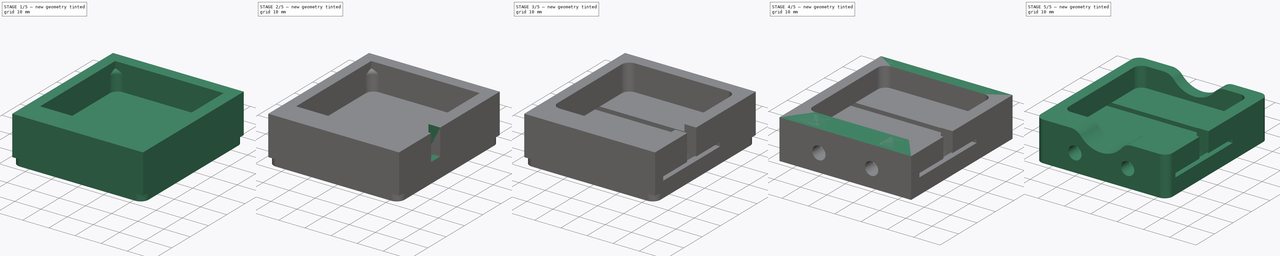
[diagram: build sequence overview — one tinted view per stage of 5, left to right]
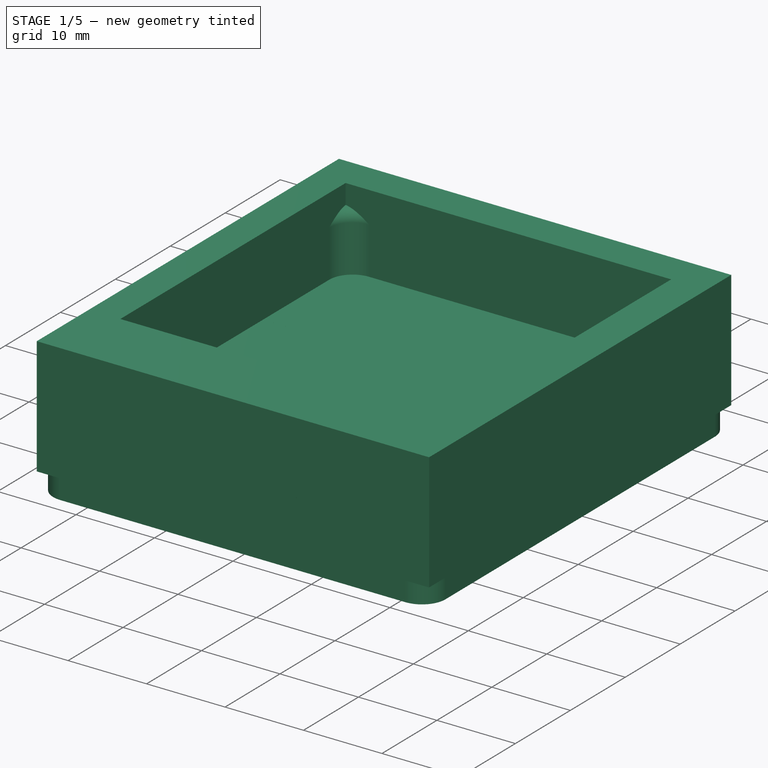
[diagram: stage 1 of 5 — iso view after this stage's code; geometry added in this stage tinted green]
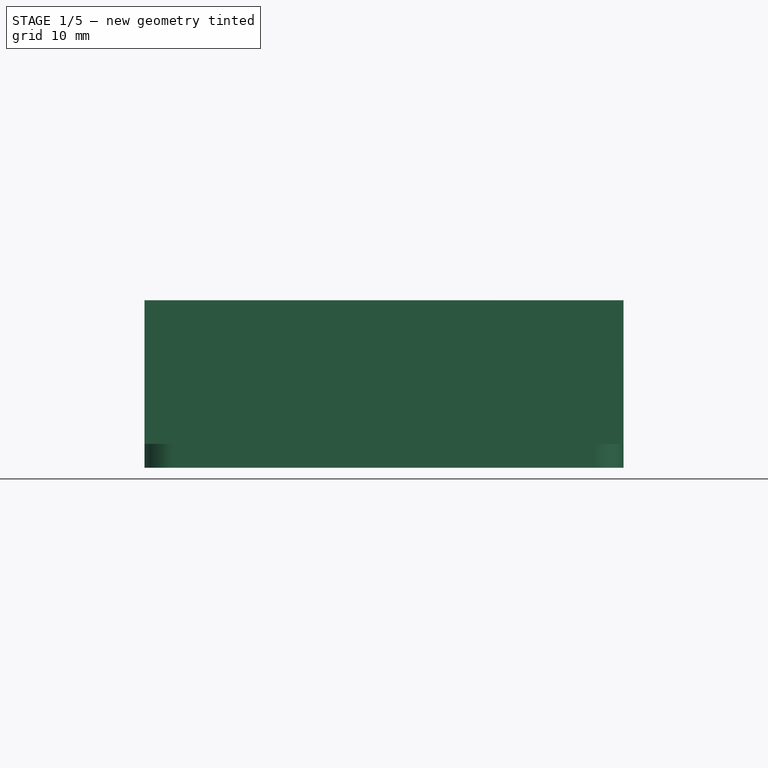
[diagram: stage 1 of 5 — front view after this stage's code; geometry added in this stage tinted green]
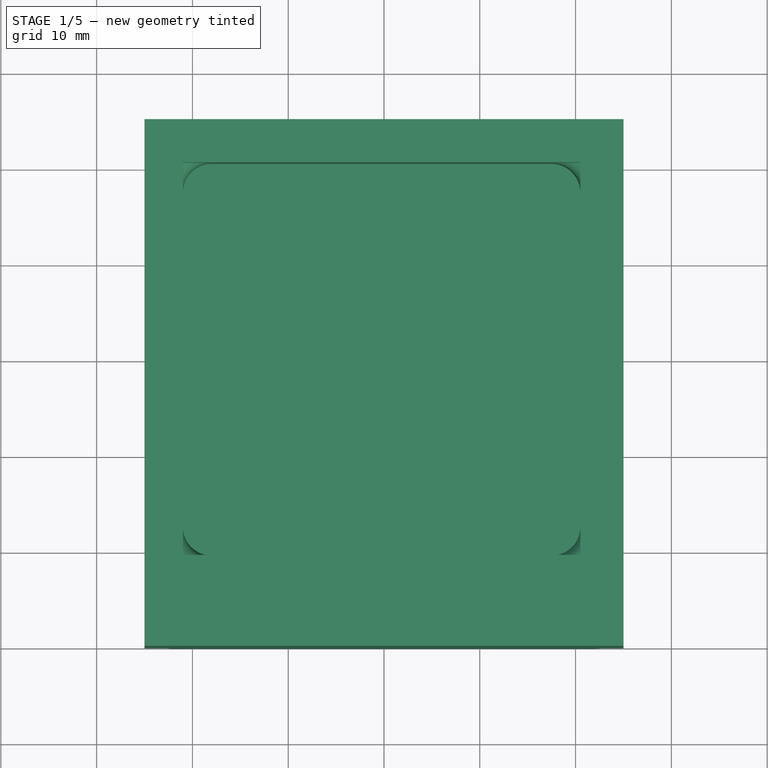
[diagram: stage 1 of 5 — top view after this stage's code; geometry added in this stage tinted green]
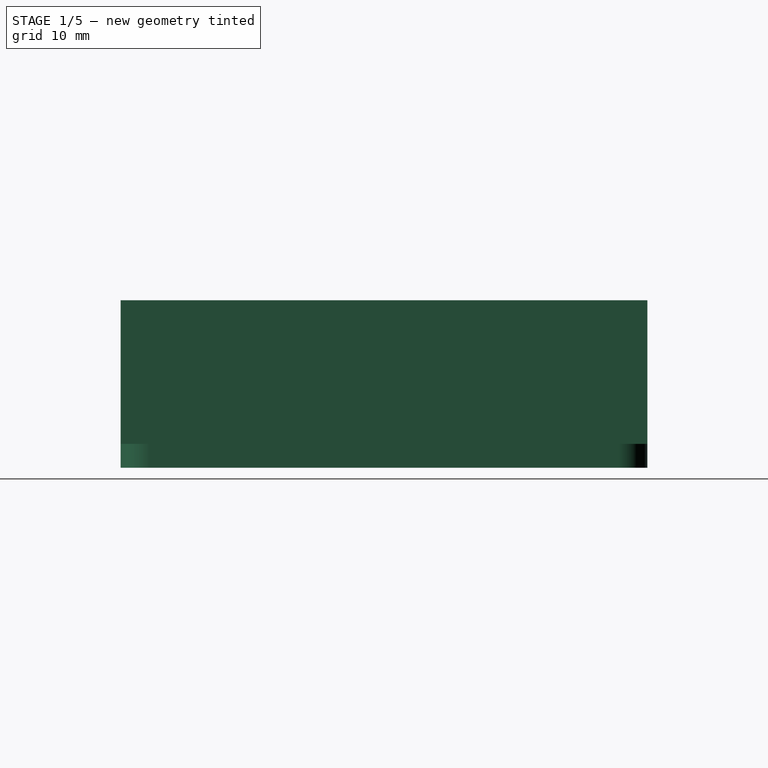
[diagram: stage 1 of 5 — right view after this stage's code; geometry added in this stage tinted green]
FCSTD DOCUMENT  (FreeCAD 0.17R7796 (Git))
Label: multi_length_fan_jig
License: CreativeCommons Attribution-ShareAlike
LicenseURL: http://creativecommons.org/licenses/by-sa/4.0/
objects: Sketcher::SketchObject×11, PartDesign::Pocket×7, PartDesign::Fillet×6, PartDesign::Pad×3, PartDesign::Chamfer×1, PartDesign::Body×1, Part::Feature×1
note: 40 computed .brp shape members not serialized (recipe doc carries the construction recipe); baked Part::Feature solids carry a one-line shape summary decoded from their .brp

FEATURE [Sketcher::SketchObject] Sketch
  MapMode = 5
  Support = -> [XY_Plane]
  sketch-geometry (4):
    g0: LineSegment StartX=-25 StartY=25 StartZ=0 EndX=25 EndY=25 EndZ=0
    g1: LineSegment StartX=25 StartY=25 StartZ=0 EndX=25 EndY=-30 EndZ=0
    g2: LineSegment StartX=25 StartY=-30 StartZ=0 EndX=-25 EndY=-30 EndZ=0
    g3: LineSegment StartX=-25 StartY=-30 StartZ=0 EndX=-25 EndY=25 EndZ=0
  constraints (12):
    c: Coincident(g0,g1)
    c: Coincident(g1,g2)
    c: Coincident(g2,g3)
    c: Coincident(g3,g0)
    c: Horizontal(g0)
    c: Horizontal(g2)
    c: Vertical(g1)
    c: Vertical(g3)
    c: DistanceX(g0,g0) = 50
    c: DistanceY(g3,g3) = 55
    c: DistanceX(g2,g-1) = 25
    c: DistanceY(g-1,g0) = 25
FEATURE [PartDesign::Pad] Pad
  Length = 15
  Length2 = 100
  Profile = -> Sketch
  Type = 0
FEATURE [Sketcher::SketchObject] Sketch001
  MapMode = 5
  Placement = pos=(0,0,15) rot=(0,0,1;0rad)
  Support = -> [Pad]
  sketch-geometry (4):
    g0: LineSegment StartX=-21 StartY=20.5 StartZ=0 EndX=20.5 EndY=20.5 EndZ=0
    g1: LineSegment StartX=20.5 StartY=20.5 StartZ=0 EndX=20.5 EndY=-20.5 EndZ=0
    g2: LineSegment StartX=20.5 StartY=-20.5 StartZ=0 EndX=-21 EndY=-20.5 EndZ=0
    g3: LineSegment StartX=-21 StartY=-20.5 StartZ=0 EndX=-21 EndY=20.5 EndZ=0
  constraints (12):
    c: Coincident(g0,g1)
    c: Coincident(g1,g2)
    c: Coincident(g2,g3)
    c: Coincident(g3,g0)
    c: Horizontal(g0)
    c: Horizontal(g2)
    c: Vertical(g1)
    c: Vertical(g3)
    c: DistanceX(g0,g0) = 41.5
    c: DistanceY(g3,g3) = 41
    c: DistanceY(g-1,g0) = 20.5
    c: DistanceX(g0,g-1) = 21
FEATURE [PartDesign::Pocket] Pocket
  BaseFeature = -> Pad
  Length = 10
  Profile = -> Sketch001
  Type = 0
FEATURE [PartDesign::Body] Body
  Model = -> [Sketch,Pad,Sketch001,Pocket,Sketch002,Pocket001,Sketch003,Sketch004,Pocket002,Chamfer,Sketch005,Pad001,Sketch006,Pocket003,Fillet,Fillet001,Fillet002,Sketch007,Pocket004,Sketch008,Pocket005,Sketch009,Pad002,Sketch010,Pocket006,Fillet003,Fillet004]
  Origin = -> BodyOrigin
  Tip = -> Fillet004
FEATURE [Part::Feature] Fillet004001  label="Fillet005"
  shape: bbox 50 x 55 x 15 mm, 59 faces (baked)
FEATURE [PartDesign::Fillet] Fillet004002
  Base = -> Fillet004001 [Edge43,Edge42,Edge21,Edge19,Edge17,Edge15,Edge5,Edge7,Edge9,Edge11,Edge12,Edge27,Edge35,Edge33,Edge32,Edge64,Edge65,Edge63,Edge41,Edge8]
  Radius = 1.5
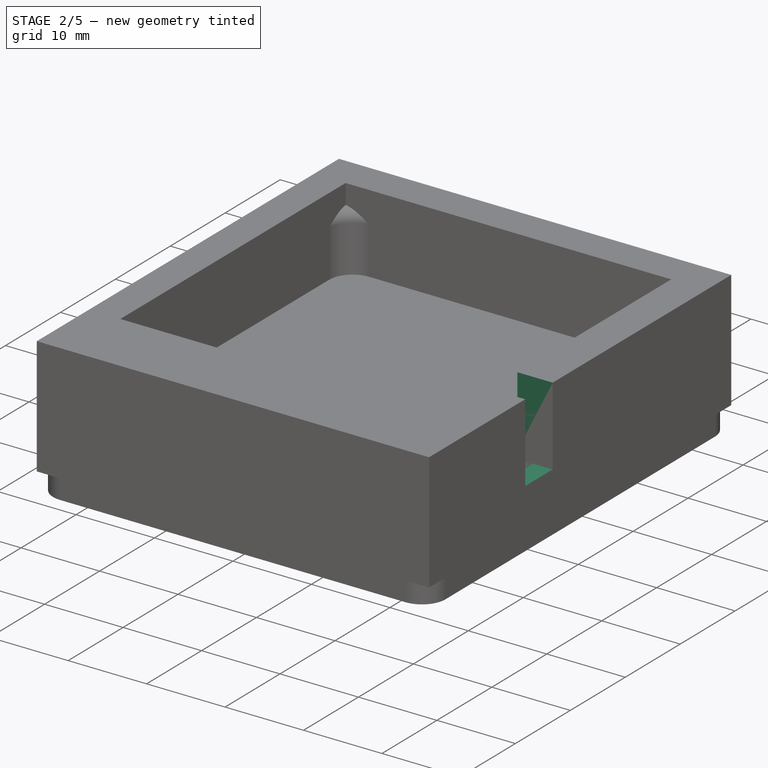
[diagram: stage 2 of 5 — iso view after this stage's code; geometry added in this stage tinted green]
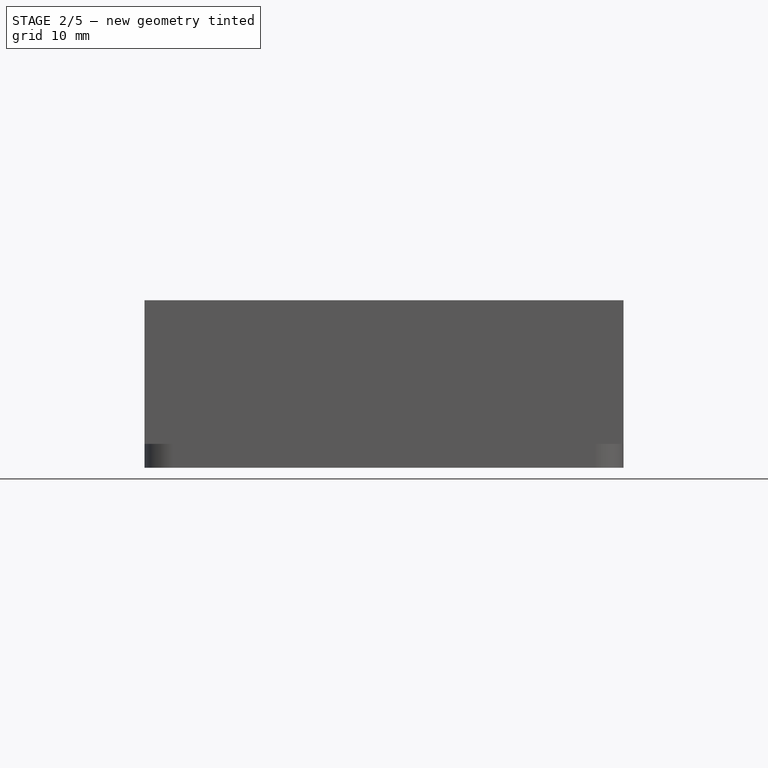
[diagram: stage 2 of 5 — front view after this stage's code; geometry added in this stage tinted green]
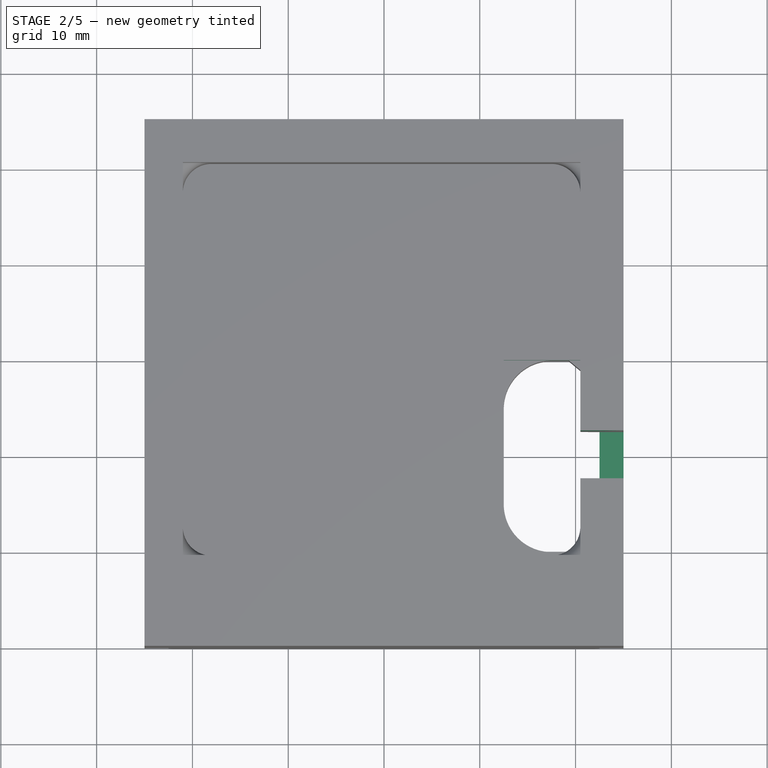
[diagram: stage 2 of 5 — top view after this stage's code; geometry added in this stage tinted green]
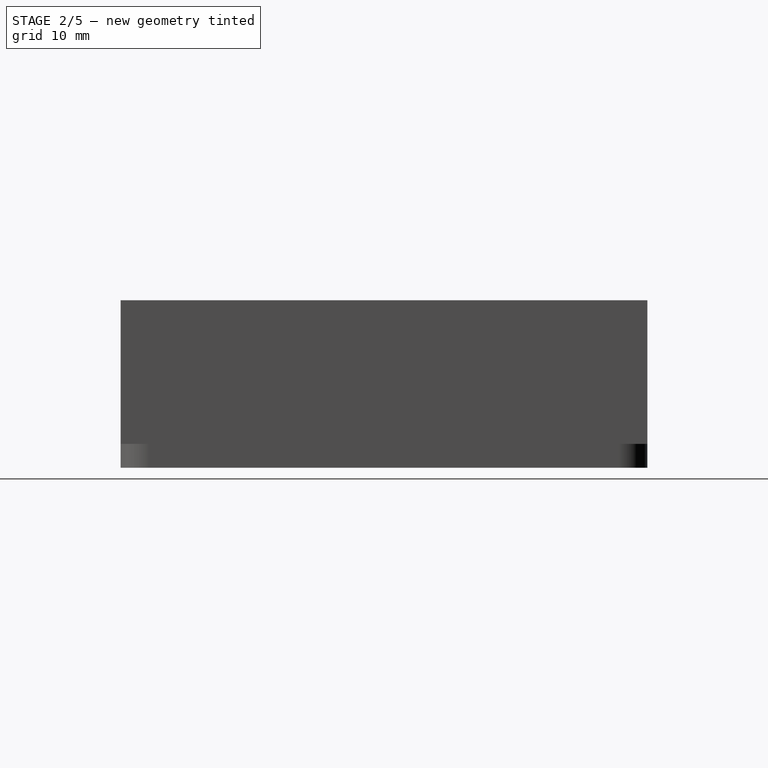
[diagram: stage 2 of 5 — right view after this stage's code; geometry added in this stage tinted green]
FEATURE [Sketcher::SketchObject] Sketch002
  ExternalGeometry = -> [Pocket]
  MapMode = 5
  Placement = pos=(0,0,15) rot=(0,0,1;0rad)
  Support = -> [Pocket]
  sketch-geometry (4):
    g0: LineSegment StartX=20.5 StartY=-7.5 StartZ=0 EndX=25.5 EndY=-7.5 EndZ=0
    g1: LineSegment StartX=25.5 StartY=-7.5 StartZ=0 EndX=25.5 EndY=-12.5 EndZ=0
    g2: LineSegment StartX=25.5 StartY=-12.5 StartZ=0 EndX=20.5 EndY=-12.5 EndZ=0
    g3: LineSegment StartX=20.5 StartY=-12.5 StartZ=0 EndX=20.5 EndY=-7.5 EndZ=0
  constraints (12):
    c: Coincident(g0,g1)
    c: Coincident(g1,g2)
    c: Coincident(g2,g3)
    c: Coincident(g3,g0)
    c: Horizontal(g0)
    c: Horizontal(g2)
    c: Vertical(g1)
    c: Vertical(g3)
    c: DistanceY(g-3,g2) = 8
    c: DistanceY(g3,g3) = 5
    c: PointOnObject(g2,g-4)
    c: DistanceX(g0,g0) = 5
FEATURE [PartDesign::Pocket] Pocket001
  BaseFeature = -> Pocket
  Length = 10
  Profile = -> Sketch002
  Type = 0
FEATURE [Sketcher::SketchObject] Sketch003
  MapMode = 5
  Placement = pos=(-25,0,0) rot=(0.57735,-0.57735,-0.57735;2.0944rad)
  Support = -> [Pocket001]
FEATURE [Sketcher::SketchObject] Sketch004
  MapMode = 5
  Placement = pos=(0,0,0) rot=(1,0,0;3.14159rad)
  Support = -> [Pocket001]
  sketch-geometry (4):
    g0: LineSegment StartX=12.5 StartY=20 StartZ=0 EndX=22.5 EndY=20 EndZ=0
    g1: LineSegment StartX=22.5 StartY=20 StartZ=0 EndX=22.5 EndY=0 EndZ=0
    g2: LineSegment StartX=22.5 StartY=0 StartZ=0 EndX=12.5 EndY=0 EndZ=0
    g3: LineSegment StartX=12.5 StartY=0 StartZ=0 EndX=12.5 EndY=20 EndZ=0
  constraints (12):
    c: Coincident(g0,g1)
    c: Coincident(g1,g2)
    c: Coincident(g2,g3)
    c: Coincident(g3,g0)
    c: Horizontal(g0)
    c: Horizontal(g2)
    c: Vertical(g1)
    c: Vertical(g3)
    c: DistanceX(g0,g0) = 10
    c: DistanceY(g1,g1) = 20
    c: PointOnObject(g2,g-1)
    c: DistanceX(g-1,g2) = 12.5
FEATURE [PartDesign::Pocket] Pocket002
  BaseFeature = -> Pocket001
  Length = 5
  Profile = -> Sketch004
  Type = 0
FEATURE [PartDesign::Chamfer] Chamfer
  Base = -> Pocket002 [Edge55,Edge48]
  BaseFeature = -> Pocket002
  Size = 1
FEATURE [Sketcher::SketchObject] Sketch005
  ExternalGeometry = -> [Chamfer]
  MapMode = 5
  Placement = pos=(0,0,0) rot=(1,0,0;3.14159rad)
  Support = -> [Chamfer]
  sketch-geometry (6):
    g0: LineSegment StartX=19.2936 StartY=20 StartZ=0 EndX=20.5 EndY=19 EndZ=0
    g1: LineSegment StartX=20.5 StartY=19 StartZ=0 EndX=21.7064 EndY=20 EndZ=0
    g2: LineSegment StartX=21.7064 StartY=20 StartZ=0 EndX=19.2936 EndY=20 EndZ=0
    g3: LineSegment StartX=20.5 StartY=1 StartZ=0 EndX=19.2936 EndY=0 EndZ=0
    g4: LineSegment StartX=19.2936 StartY=0 StartZ=0 EndX=21.7064 EndY=0 EndZ=0
    g5: LineSegment StartX=21.7064 StartY=0 StartZ=0 EndX=20.5 EndY=1 EndZ=0
  constraints (17):
    c: Coincident(g0,g1)
    c: Coincident(g1,g2)
    c: Horizontal(g2)
    c: Coincident(g3,g4)
    c: Horizontal(g4)
    c: Coincident(g4,g5)
    c: Coincident(g3,g5)
    c: Coincident(g0,g2)
    c: Equal(g1,g0)
    c: Equal(g0,g3)
    c: Equal(g3,g5)
    c: Equal(g2,g4)
    c: DistanceY(g3,g0) = 18
    c: PointOnObject(g1,g-3)
    c: PointOnObject(g4,g-1)
    c: PointOnObject(g0,g-4)
    c: DistanceX(g3,g0) = 0
FEATURE [PartDesign::Pad] Pad001
  BaseFeature = -> Chamfer
  Length = 3.5
  Length2 = 100
  Profile = -> Sketch005
  Reversed = true
  Type = 0
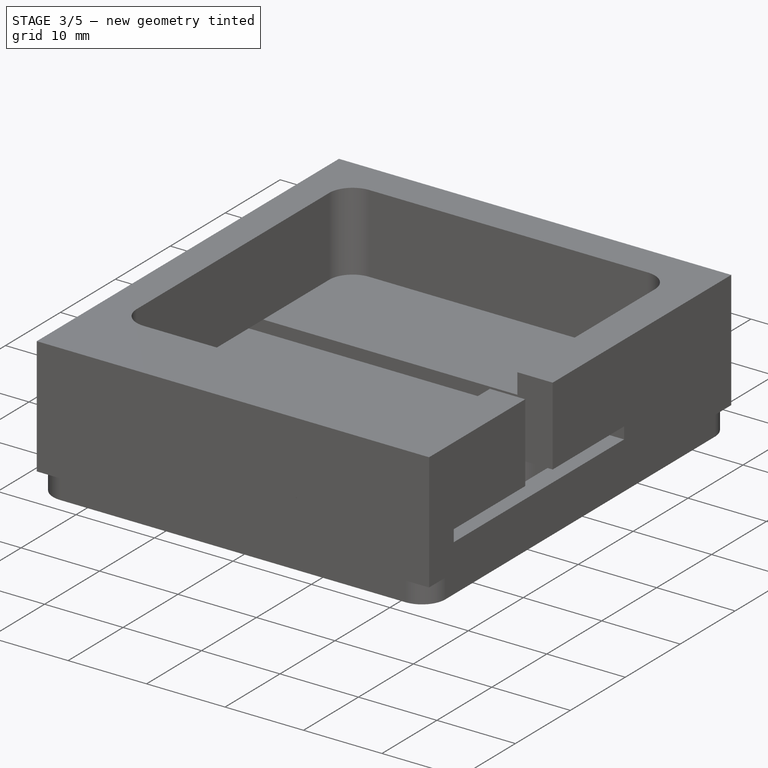
[diagram: stage 3 of 5 — iso view after this stage's code; geometry added in this stage tinted green]
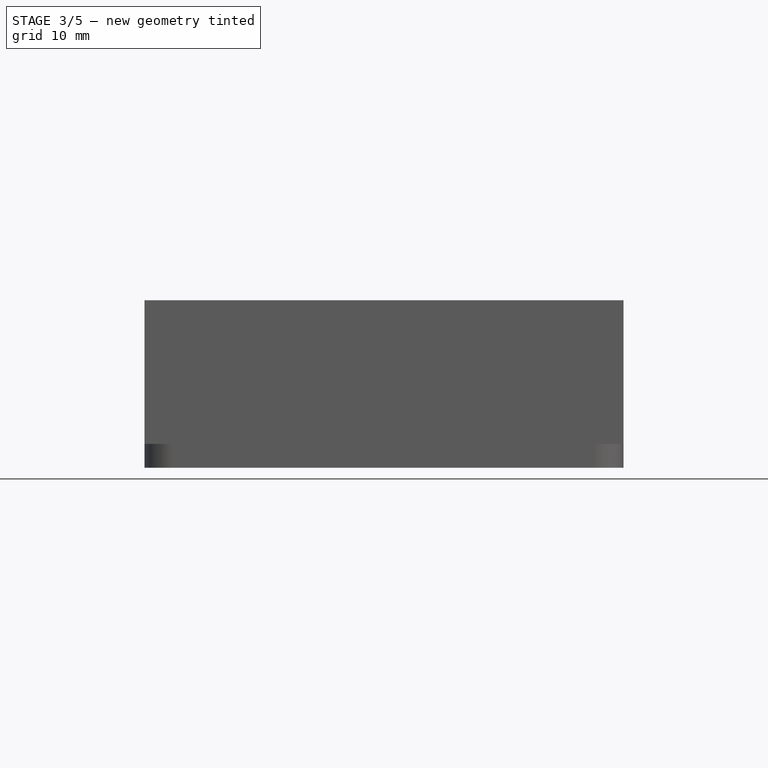
[diagram: stage 3 of 5 — front view after this stage's code; geometry added in this stage tinted green]
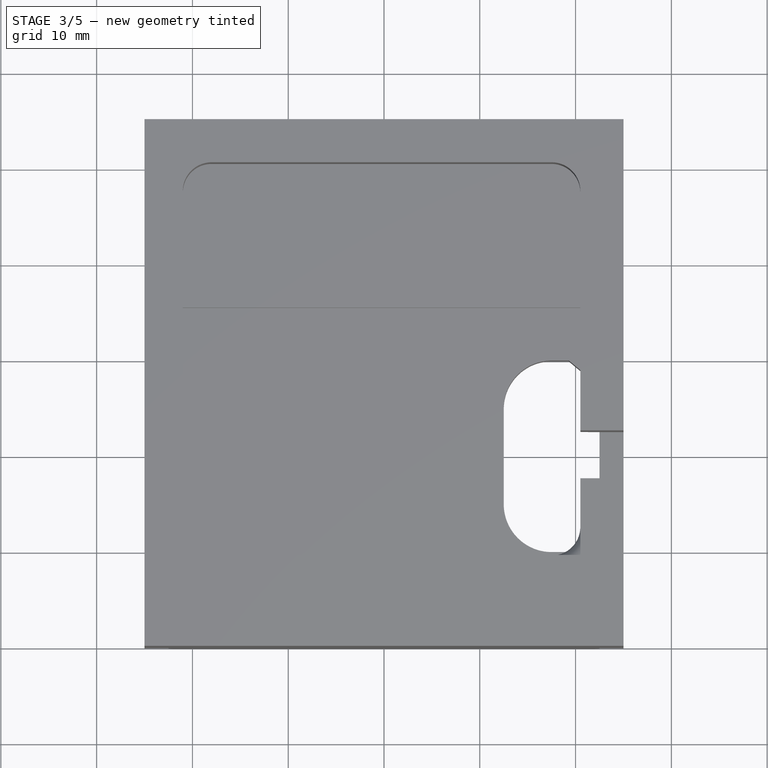
[diagram: stage 3 of 5 — top view after this stage's code; geometry added in this stage tinted green]
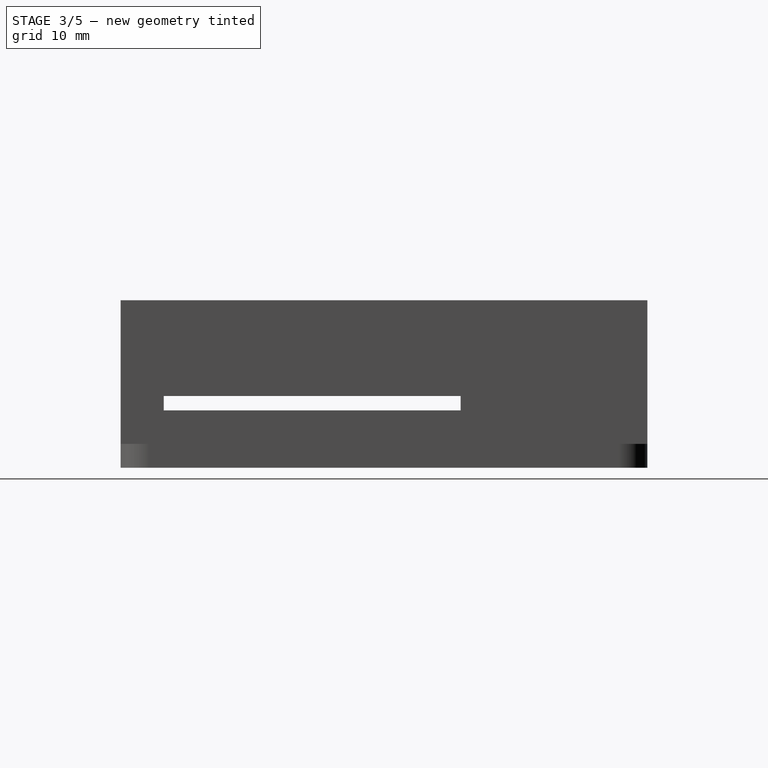
[diagram: stage 3 of 5 — right view after this stage's code; geometry added in this stage tinted green]
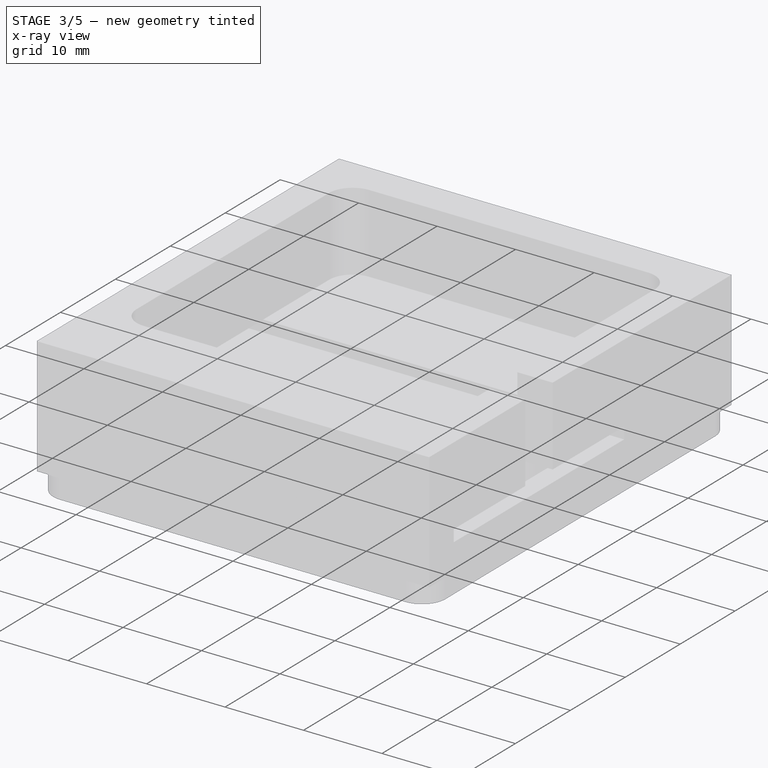
[diagram: stage 3 of 5 — x-ray composite at the iso view; earlier geometry ghosted, this stage's added geometry solid]
FEATURE [Sketcher::SketchObject] Sketch006
  ExternalGeometry = -> [Pad001]
  MapMode = 5
  Placement = pos=(25,0,0) rot=(0.57735,0.57735,0.57735;2.0944rad)
  Support = -> [Pad001]
  sketch-geometry (4):
    g0: LineSegment StartX=-25.5 StartY=5 StartZ=0 EndX=5.5 EndY=5 EndZ=0
    g1: LineSegment StartX=5.5 StartY=5 StartZ=0 EndX=5.5 EndY=3.5 EndZ=0
    g2: LineSegment StartX=5.5 StartY=3.5 StartZ=0 EndX=-25.5 EndY=3.5 EndZ=0
    g3: LineSegment StartX=-25.5 StartY=3.5 StartZ=0 EndX=-25.5 EndY=5 EndZ=0
  constraints (12):
    c: Coincident(g0,g1)
    c: Coincident(g1,g2)
    c: Coincident(g2,g3)
    c: Coincident(g3,g0)
    c: Horizontal(g0)
    c: Horizontal(g2)
    c: Vertical(g1)
    c: Vertical(g3)
    c: DistanceY(g3,g3) = 1.5
    c: DistanceX(g2,g2) = 31
    c: DistanceX(g2,g-3) = 5.5
    c: DistanceY(g-3,g2) = 3.5
FEATURE [PartDesign::Pocket] Pocket003
  BaseFeature = -> Pad001
  Length = 5
  Profile = -> Sketch006
  Type = 1
FEATURE [PartDesign::Fillet] Fillet
  Base = -> Pocket003 [Edge41,Edge53,Edge50]
  BaseFeature = -> Pocket003
  Radius = 3
FEATURE [PartDesign::Fillet] Fillet001
  Base = -> Fillet [Edge97,Edge96]
  BaseFeature = -> Fillet
  Radius = 5
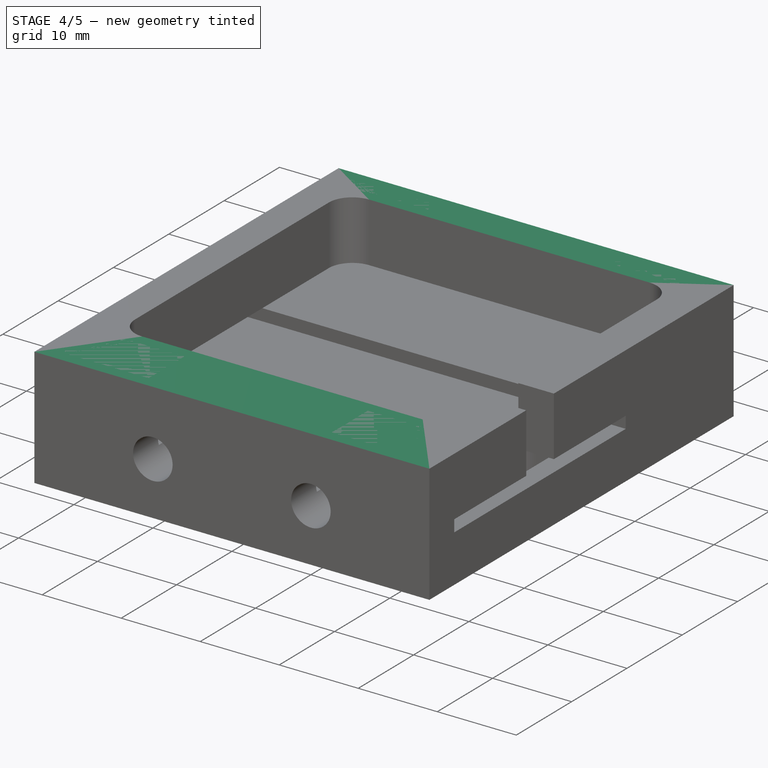
[diagram: stage 4 of 5 — iso view after this stage's code; geometry added in this stage tinted green]
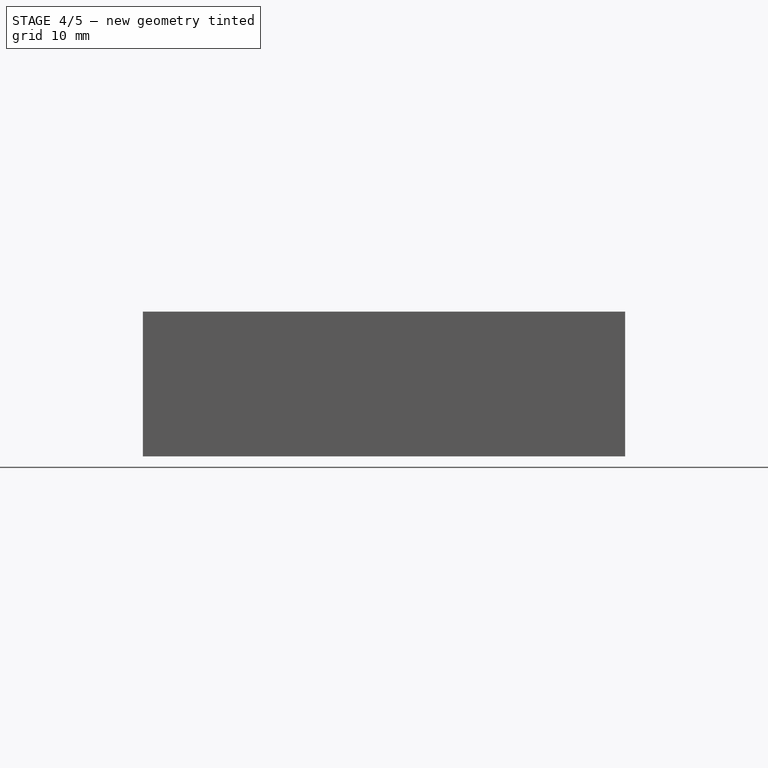
[diagram: stage 4 of 5 — front view after this stage's code; geometry added in this stage tinted green]
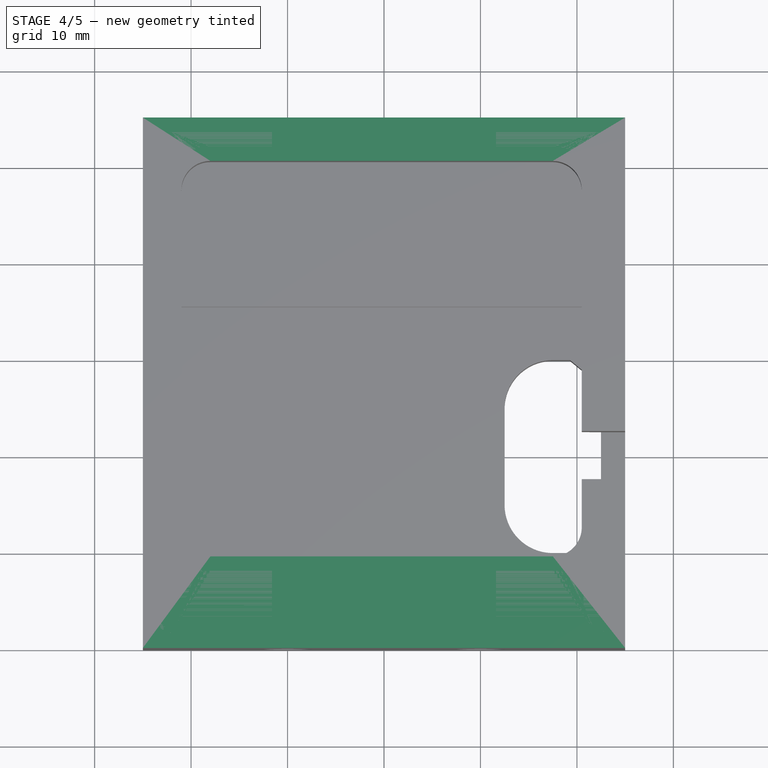
[diagram: stage 4 of 5 — top view after this stage's code; geometry added in this stage tinted green]
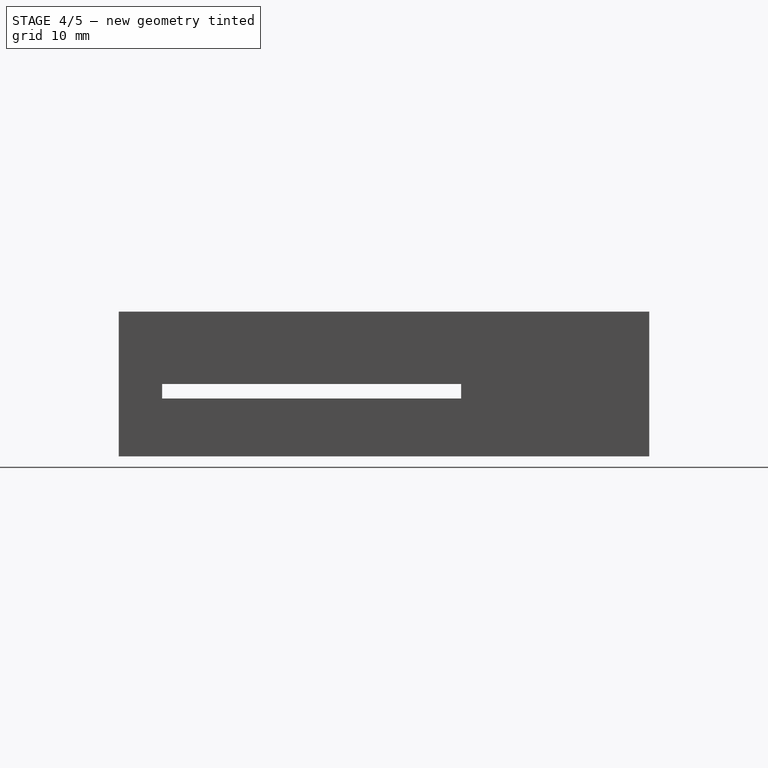
[diagram: stage 4 of 5 — right view after this stage's code; geometry added in this stage tinted green]
FEATURE [PartDesign::Fillet] Fillet002
  Base = -> Fillet001 [Edge113]
  BaseFeature = -> Fillet001
  Radius = 3
FEATURE [Sketcher::SketchObject] Sketch007
  MapMode = 5
  Placement = pos=(0,-30,0) rot=(1,0,0;1.5708rad)
  Support = -> [Fillet002]
  sketch-geometry (2):
    g0: Circle CenterX=-10 CenterY=4.25 CenterZ=0 NormalX=0 NormalY=0 NormalZ=1 Radius=2.5
    g1: Circle CenterX=10 CenterY=4.25 CenterZ=0 NormalX=0 NormalY=0 NormalZ=1 Radius=2.5
  constraints (6):
    c: Equal(g1,g0)
    c: Radius(g1) = 2.5
    c: DistanceY(g1,g0) = 0
    c: DistanceX(g0,g1) = 20
    c: DistanceX(g-1,g1) = 10
    c: DistanceY(g-1,g0) = 4.25
FEATURE [PartDesign::Pocket] Pocket004
  BaseFeature = -> Fillet002
  Length = 7
  Profile = -> Sketch007
  Type = 0
FEATURE [Sketcher::SketchObject] Sketch008
  ExternalGeometry = -> [Pocket004]
  MapMode = 5
  Placement = pos=(0,0,15) rot=(0,0,1;0rad)
  Support = -> [Pocket004]
  sketch-geometry (4):
    g0: LineSegment StartX=-25 StartY=25 StartZ=0 EndX=25 EndY=25 EndZ=0
    g1: LineSegment StartX=25 StartY=25 StartZ=0 EndX=25 EndY=-30 EndZ=0
    g2: LineSegment StartX=25 StartY=-30 StartZ=0 EndX=-25 EndY=-30 EndZ=0
    g3: LineSegment StartX=-25 StartY=-30 StartZ=0 EndX=-25 EndY=25 EndZ=0
  constraints (10):
    c: Coincident(g0,g1)
    c: Coincident(g1,g2)
    c: Coincident(g2,g3)
    c: Coincident(g3,g0)
    c: Horizontal(g0)
    c: Horizontal(g2)
    c: Vertical(g1)
    c: Vertical(g3)
    c: Coincident(g0,g-3)
    c: Coincident(g1,g-4)
FEATURE [PartDesign::Pocket] Pocket005
  BaseFeature = -> Pocket004
  Length = 2.5
  Profile = -> Sketch008
  Type = 0
FEATURE [Sketcher::SketchObject] Sketch009
  ExternalGeometry = -> [Pocket005]
  MapMode = 5
  Placement = pos=(0,0,0) rot=(1,0,0;3.14159rad)
  Support = -> [Pocket005]
  sketch-geometry (16):
    g0: LineSegment StartX=17.5 StartY=20 StartZ=0 EndX=19.2936 EndY=20 EndZ=0
    g1: LineSegment StartX=19.2936 StartY=20 StartZ=0 EndX=20.5 EndY=19 EndZ=0
    g2: LineSegment StartX=20.5 StartY=19 StartZ=0 EndX=21.7064 EndY=20 EndZ=0
    g3: LineSegment StartX=21.7064 StartY=20 StartZ=0 EndX=22.5 EndY=20 EndZ=0
    g4: LineSegment StartX=22.5 StartY=20 StartZ=0 EndX=22.5 EndY=0 EndZ=0
    g5: LineSegment StartX=22.5 StartY=0 StartZ=0 EndX=21.7064 EndY=0 EndZ=0
    g6: LineSegment StartX=21.7064 StartY=0 StartZ=0 EndX=20.5 EndY=1 EndZ=0
    g7: LineSegment StartX=20.5 StartY=1 StartZ=0 EndX=19.2936 EndY=0 EndZ=0
    g8: LineSegment StartX=19.2936 StartY=0 StartZ=0 EndX=17.5 EndY=0 EndZ=0
    g9: ArcOfCircle CenterX=17.5 CenterY=15 CenterZ=0 NormalX=0 NormalY=0 NormalZ=1 Radius=5 StartAngle=1.5708 EndAngle=3.14159
    g10: ArcOfCircle CenterX=17.5 CenterY=5 CenterZ=0 NormalX=0 NormalY=0 NormalZ=1 Radius=5 StartAngle=3.14159 EndAngle=4.71239
    g11: LineSegment StartX=12.5 StartY=15 StartZ=0 EndX=12.5 EndY=5 EndZ=0
    g12: LineSegment StartX=-25 StartY=30 StartZ=0 EndX=25 EndY=30 EndZ=0
    g13: LineSegment StartX=25 StartY=30 StartZ=0 EndX=25 EndY=-25 EndZ=0
    g14: LineSegment StartX=25 StartY=-25 StartZ=0 EndX=-25 EndY=-25 EndZ=0
    g15: LineSegment StartX=-25 StartY=-25 StartZ=0 EndX=-25 EndY=30 EndZ=0
  constraints (35):
    c: Coincident(g0,g9)
    c: Coincident(g0,g-6)
    c: Vertical(g11)
    c: Coincident(g10,g11)
    c: Coincident(g10,g-7)
    c: Coincident(g9,g-6)
    c: Coincident(g9,g11)
    c: Coincident(g0,g1)
    c: Coincident(g0,g-11)
    c: Coincident(g1,g2)
    c: Coincident(g1,g-11)
    c: Coincident(g2,g3)
    c: Coincident(g2,g-8)
    c: Coincident(g3,g4)
    c: Coincident(g3,g-5)
    c: Coincident(g4,g5)
    c: Coincident(g4,g-5)
    c: Coincident(g5,g6)
    c: Coincident(g5,g-9)
    c: Coincident(g6,g7)
    c: Coincident(g6,g-10)
    c: Coincident(g8,g10)
    c: Coincident(g8,g-7)
    c: Coincident(g10,g-7)
    c: Coincident(g9,g-6)
    c: Coincident(g12,g13)
    c: Coincident(g13,g14)
    c: Coincident(g14,g15)
    c: Coincident(g15,g12)
    c: Horizontal(g12)
    c: Horizontal(g14)
    c: Vertical(g13)
    c: Vertical(g15)
    c: Coincident(g13,g-4)
    c: Coincident(g12,g-3)
FEATURE [PartDesign::Pad] Pad002
  BaseFeature = -> Pocket005
  Length = 2.5
  Length2 = 100
  Profile = -> Sketch009
  Type = 0
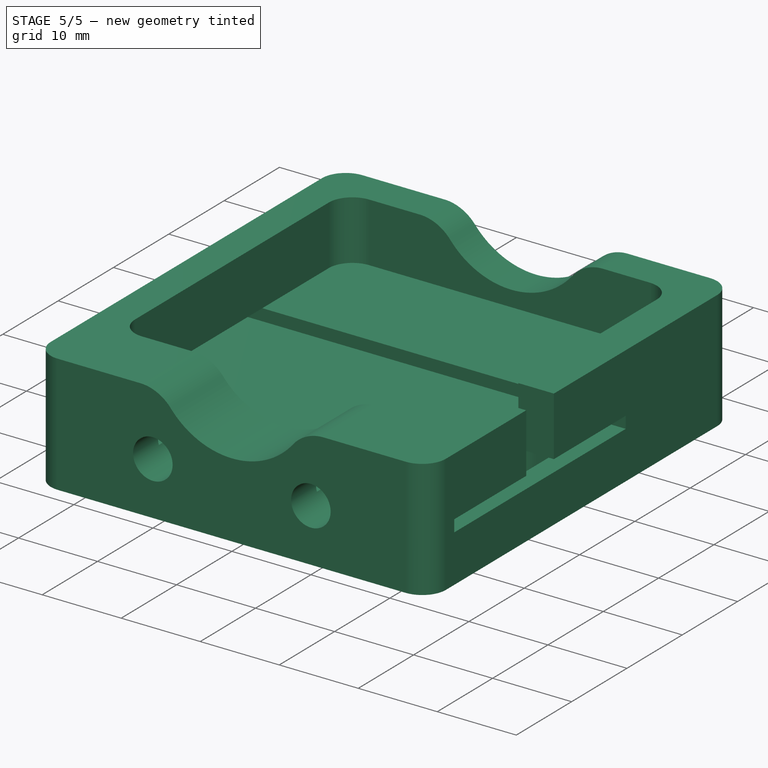
[diagram: stage 5 of 5 — iso view after this stage's code; geometry added in this stage tinted green]
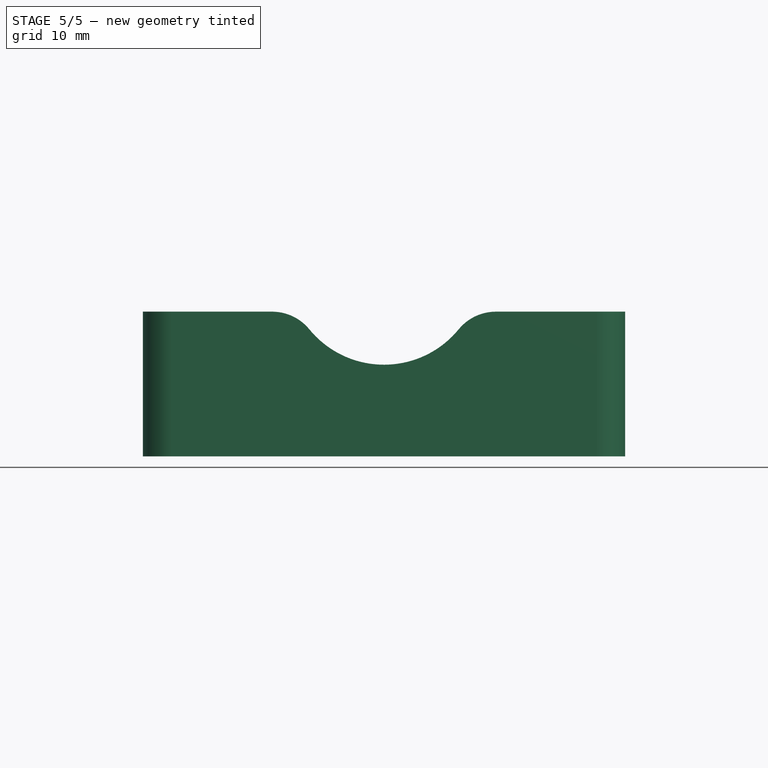
[diagram: stage 5 of 5 — front view after this stage's code; geometry added in this stage tinted green]
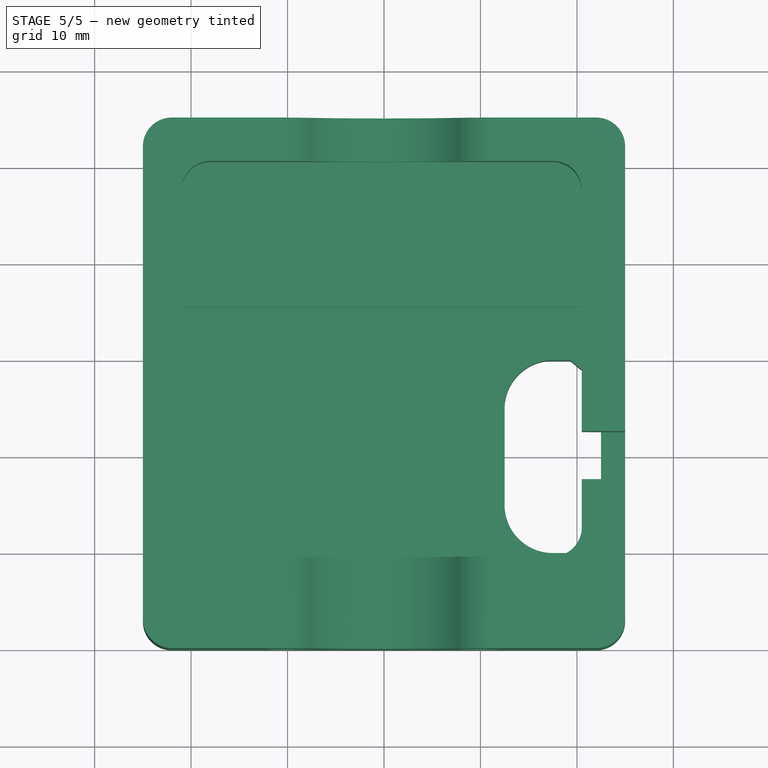
[diagram: stage 5 of 5 — top view after this stage's code; geometry added in this stage tinted green]
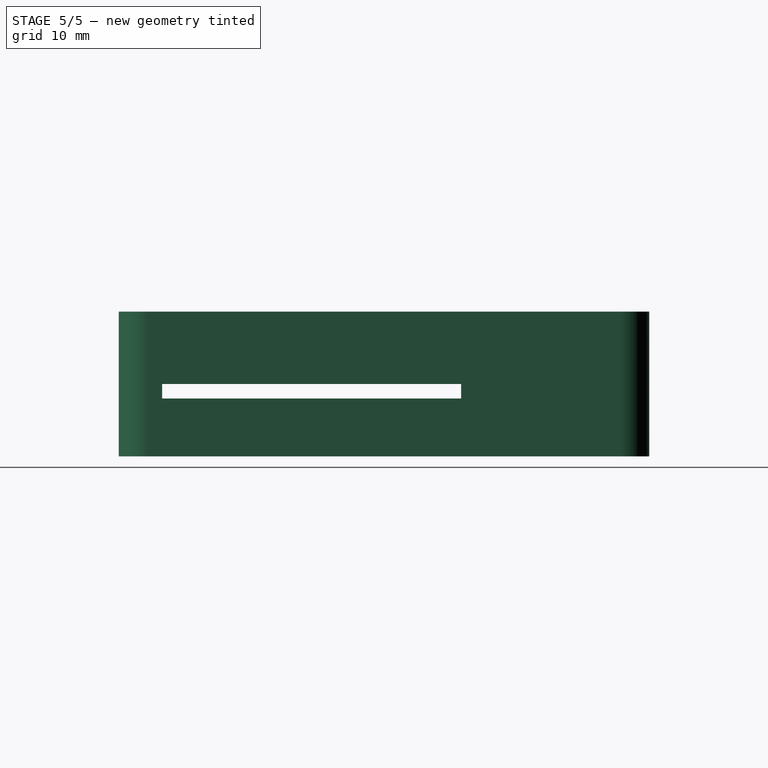
[diagram: stage 5 of 5 — right view after this stage's code; geometry added in this stage tinted green]
FEATURE [Sketcher::SketchObject] Sketch010
  ExternalGeometry = -> [Pad002]
  MapMode = 5
  Placement = pos=(0,-30,0) rot=(1,0,0;1.5708rad)
  Support = -> [Pad002]
  sketch-geometry (2):
    g0: Circle CenterX=0 CenterY=17 CenterZ=0 NormalX=0 NormalY=0 NormalZ=1 Radius=10
    g1: LineSegment [constr] StartX=0 StartY=12.5 StartZ=0 EndX=0 EndY=7 EndZ=0
  constraints (7):
    c: PointOnObject(g0,g-2)
    c: PointOnObject(g1,g-2)
    c: PointOnObject(g1,g0)
    c: PointOnObject(g1,g-3)
    c: Vertical(g1)
    c: DistanceY(g1,g1) = 5.5
    c: Radius(g0) = 10
FEATURE [PartDesign::Pocket] Pocket006
  BaseFeature = -> Pad002
  Length = 5
  Profile = -> Sketch010
  Type = 1
FEATURE [PartDesign::Fillet] Fillet003
  Base = -> Pocket006 [Edge8,Edge34,Edge17,Edge2]
  BaseFeature = -> Pocket006
  Radius = 5
FEATURE [PartDesign::Fillet] Fillet004
  Base = -> Fillet003 [Edge117,Edge36,Edge69,Edge13,Edge73,Edge21,Edge71,Edge17]
  BaseFeature = -> Fillet003
  Radius = 3
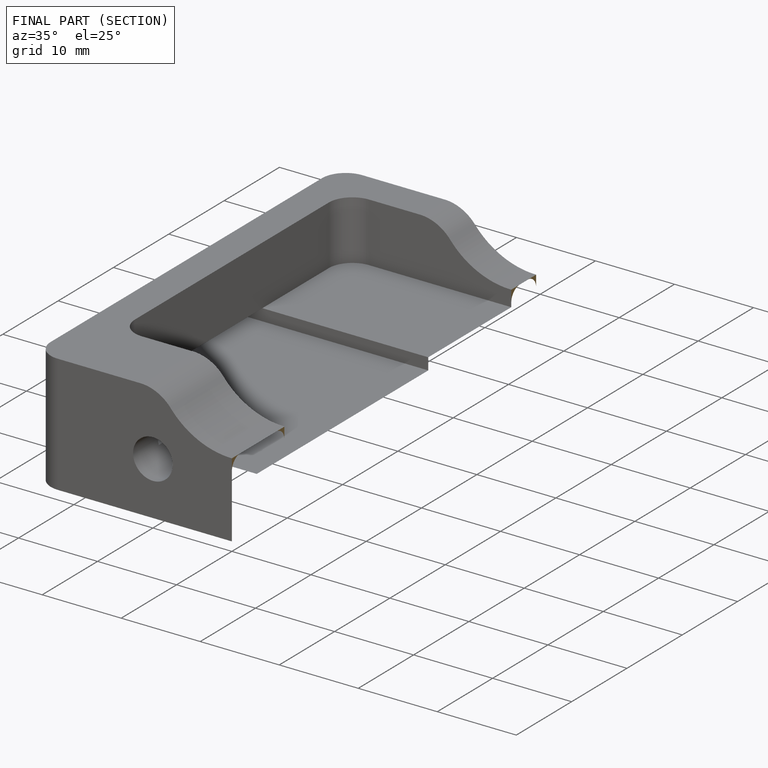
[diagram: finished part — half-section view (interior)]
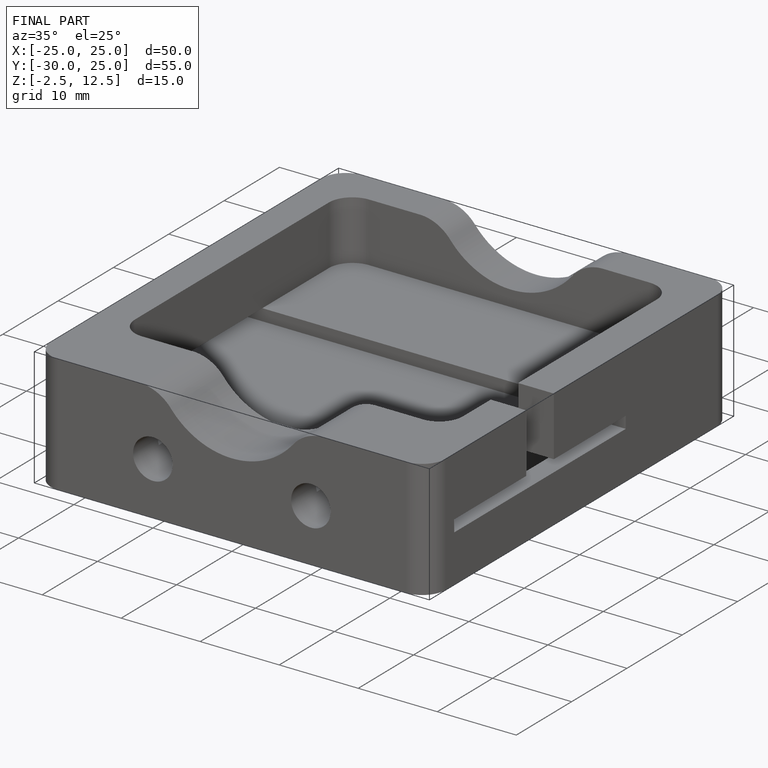
[diagram: finished part — iso view with bounding-box wireframe]
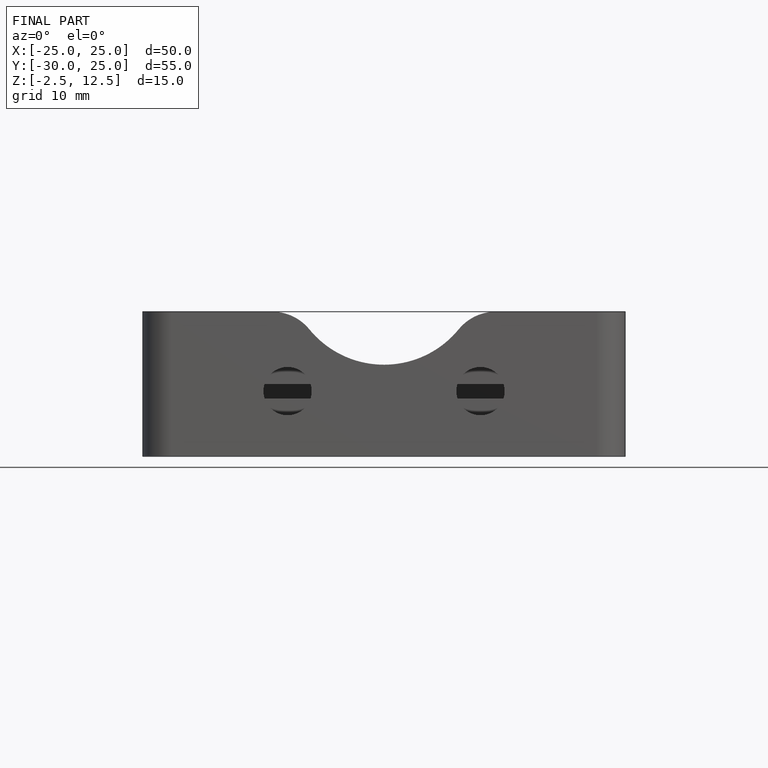
[diagram: finished part — front view with bounding-box wireframe]
